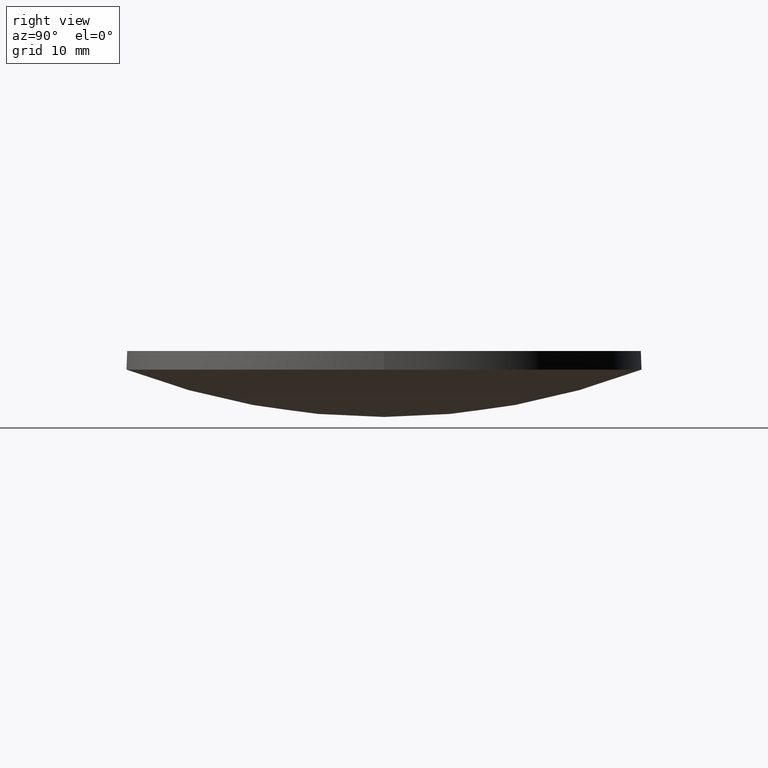
[diagram: clean part render]
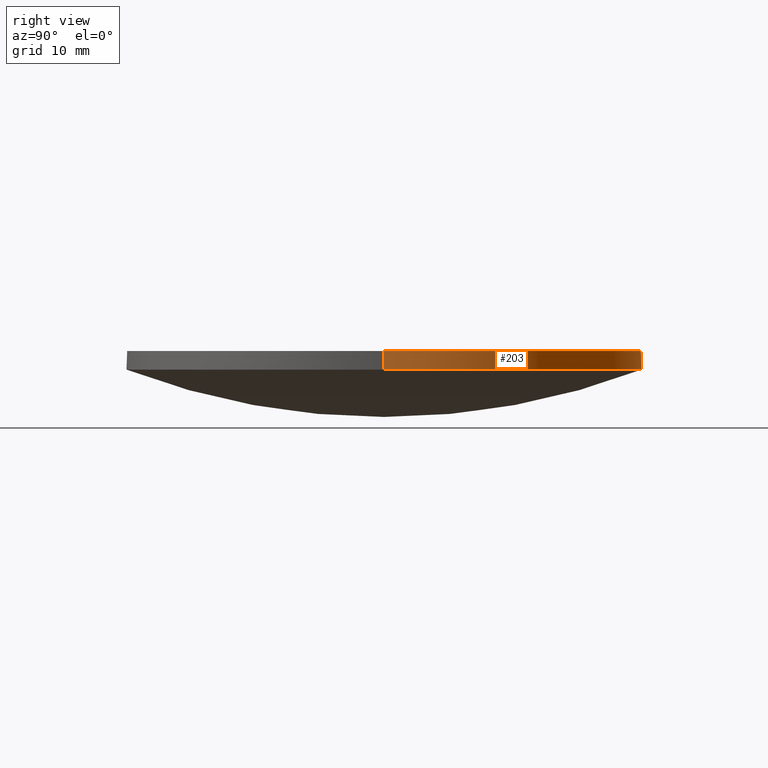
[diagram: same view with one face highlighted and labeled with its STEP entity id]
A machine part, right view. The second image highlights one B-rep face of the part: STEP entity #203.
In plain terms, the highlighted cylindrical surface (partial cylindrical patch) has radius 25.4 mm, axis along (0, 0, 1).
Its self-contained STEP definition (entity closure, byte-faithful):
#5 = LINE ( 'NONE', #129, #232 ) ;
#13 = AXIS2_PLACEMENT_3D ( 'NONE', #167, #18, #73 ) ;
#18 = DIRECTION ( 'NONE',  ( -0.0000000000000000000, -0.0000000000000000000, -1.000000000000000000 ) ) ;
#20 = DIRECTION ( 'NONE',  ( 1.000000000000000000, 0.0000000000000000000, 0.0000000000000000000 ) ) ;
#21 = CIRCLE ( 'NONE', #13, 25.39999999999999900 ) ;
#25 = ORIENTED_EDGE ( 'NONE', *, *, #222, .T. ) ;
#34 = DIRECTION ( 'NONE',  ( 0.0000000000000000000, 0.0000000000000000000, 1.000000000000000000 ) ) ;
#35 = AXIS2_PLACEMENT_3D ( 'NONE', #69, #215, #211 ) ;
#41 = CIRCLE ( 'NONE', #35, 25.39999999999999900 ) ;
#46 = DIRECTION ( 'NONE',  ( -0.0000000000000000000, -0.0000000000000000000, -1.000000000000000000 ) ) ;
#48 = EDGE_LOOP ( 'NONE', ( #193, #25, #139, #78, #54 ) ) ;
#52 = CARTESIAN_POINT ( 'NONE',  ( 1.469771453638831500E-014, 25.40000000000001600, 4.669996254120587100 ) ) ;
#54 = ORIENTED_EDGE ( 'NONE', *, *, #134, .F. ) ;
#55 = CARTESIAN_POINT ( 'NONE',  ( 9.992007221626412800E-016, 4.884981308350691100E-015, 4.669996254120579900 ) ) ;
#56 = DIRECTION ( 'NONE',  ( 0.0000000000000000000, 0.0000000000000000000, 1.000000000000000000 ) ) ;
#69 = CARTESIAN_POINT ( 'NONE',  ( 9.992007221626412800E-016, 4.884981308350691100E-015, 6.500000000000000900 ) ) ;
#71 = VECTOR ( 'NONE', #56, 1000.000000000000000 ) ;
#72 = VERTEX_POINT ( 'NONE', #122 ) ;
#73 = DIRECTION ( 'NONE',  ( 1.000000000000000000, 8.881784197001252300E-016, 0.0000000000000000000 ) ) ;
#74 = DIRECTION ( 'NONE',  ( 0.0000000000000000000, 0.0000000000000000000, 1.000000000000000000 ) ) ;
#78 = ORIENTED_EDGE ( 'NONE', *, *, #187, .F. ) ;
#86 = CARTESIAN_POINT ( 'NONE',  ( 25.39999999999999900, 4.884981308350691100E-015, 4.669996254120579900 ) ) ;
#90 = CARTESIAN_POINT ( 'NONE',  ( 25.39999999999999900, 4.884981308350691100E-015, 4.669996254120579900 ) ) ;
#94 = FACE_OUTER_BOUND ( 'NONE', #48, .T. ) ;
#100 = CARTESIAN_POINT ( 'NONE',  ( 9.992007221626412800E-016, 4.884981308350691100E-015, 4.669996254120579900 ) ) ;
#102 = CARTESIAN_POINT ( 'NONE',  ( -25.39999999999999900, 7.995584178184967200E-015, 4.669996254120579900 ) ) ;
#120 = CIRCLE ( 'NONE', #142, 25.39999999999999900 ) ;
#122 = CARTESIAN_POINT ( 'NONE',  ( 25.39999999999999900, 4.884981308350691100E-015, 6.500000000000000900 ) ) ;
#124 = EDGE_CURVE ( 'NONE', #185, #72, #41, .T. ) ;
#128 = CARTESIAN_POINT ( 'NONE',  ( -25.39999999999999900, 7.995584178184967200E-015, 6.500000000000000900 ) ) ;
#129 = CARTESIAN_POINT ( 'NONE',  ( -25.39999999999999900, 7.995584178184967200E-015, 4.669996254120579900 ) ) ;
#134 = EDGE_CURVE ( 'NONE', #202, #216, #120, .T. ) ;
#139 = ORIENTED_EDGE ( 'NONE', *, *, #124, .T. ) ;
#142 = AXIS2_PLACEMENT_3D ( 'NONE', #100, #46, #144 ) ;
#144 = DIRECTION ( 'NONE',  ( 1.000000000000000000, -1.776356839400250500E-015, 0.0000000000000000000 ) ) ;
#152 = VERTEX_POINT ( 'NONE', #102 ) ;
#158 = AXIS2_PLACEMENT_3D ( 'NONE', #55, #34, #20 ) ;
#167 = CARTESIAN_POINT ( 'NONE',  ( 9.992007221626412800E-016, 4.884981308350691100E-015, 4.669996254120579900 ) ) ;
#169 = LINE ( 'NONE', #86, #71 ) ;
#177 = EDGE_CURVE ( 'NONE', #152, #202, #21, .T. ) ;
#185 = VERTEX_POINT ( 'NONE', #128 ) ;
#187 = EDGE_CURVE ( 'NONE', #216, #72, #169, .T. ) ;
#193 = ORIENTED_EDGE ( 'NONE', *, *, #177, .F. ) ;
#202 = VERTEX_POINT ( 'NONE', #52 ) ;
#203 = ADVANCED_FACE ( 'NONE', ( #94 ), #208, .T. ) ;
#208 = CYLINDRICAL_SURFACE ( 'NONE', #158, 25.39999999999999900 ) ;
#211 = DIRECTION ( 'NONE',  ( 1.000000000000000000, 0.0000000000000000000, 0.0000000000000000000 ) ) ;
#215 = DIRECTION ( 'NONE',  ( -0.0000000000000000000, -0.0000000000000000000, -1.000000000000000000 ) ) ;
#216 = VERTEX_POINT ( 'NONE', #90 ) ;
#222 = EDGE_CURVE ( 'NONE', #152, #185, #5, .T. ) ;
#232 = VECTOR ( 'NONE', #74, 1000.000000000000000 ) ;